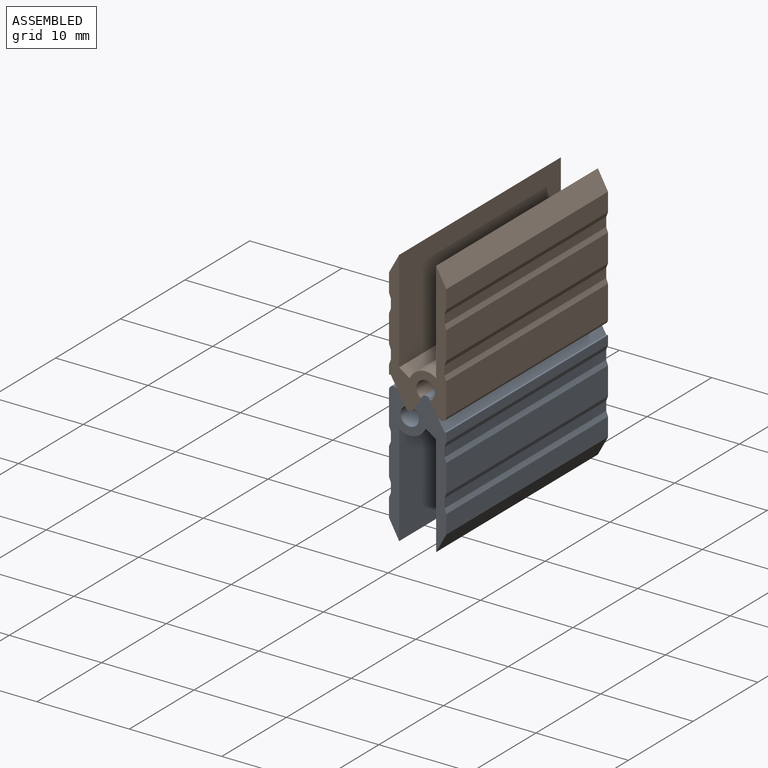
[diagram: assembled view]
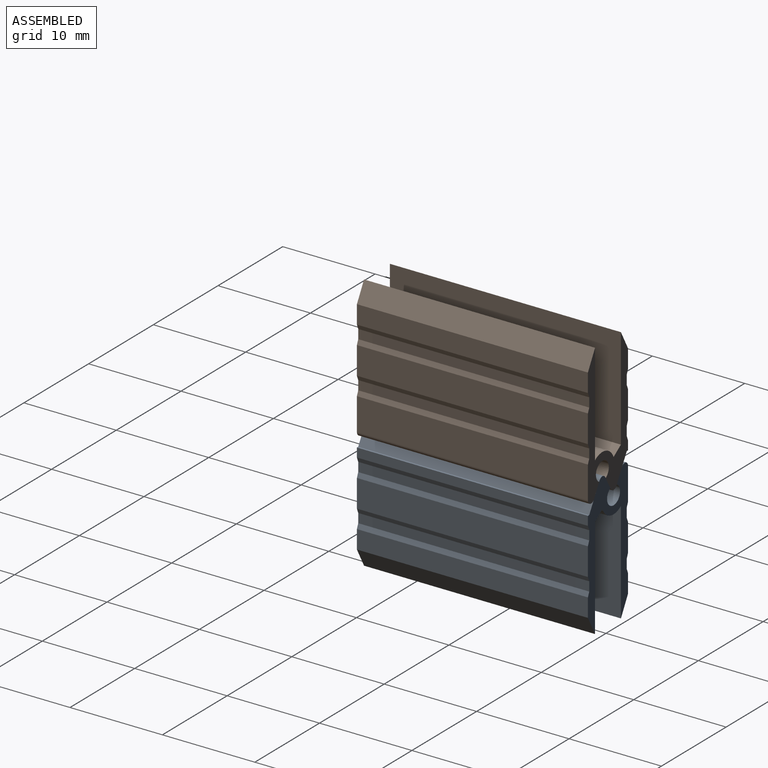
[diagram: assembled view, second angle]
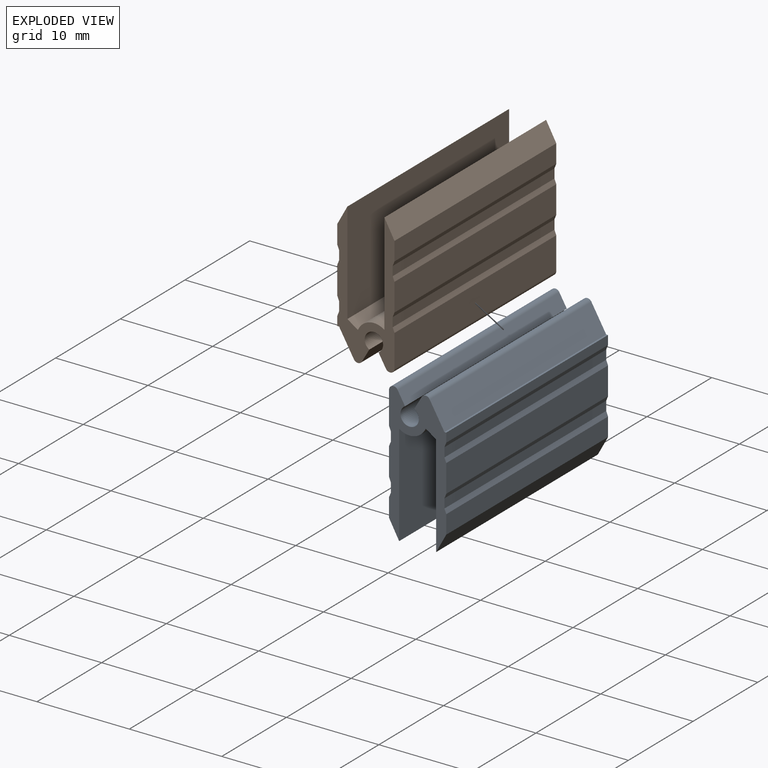
[diagram: exploded view]
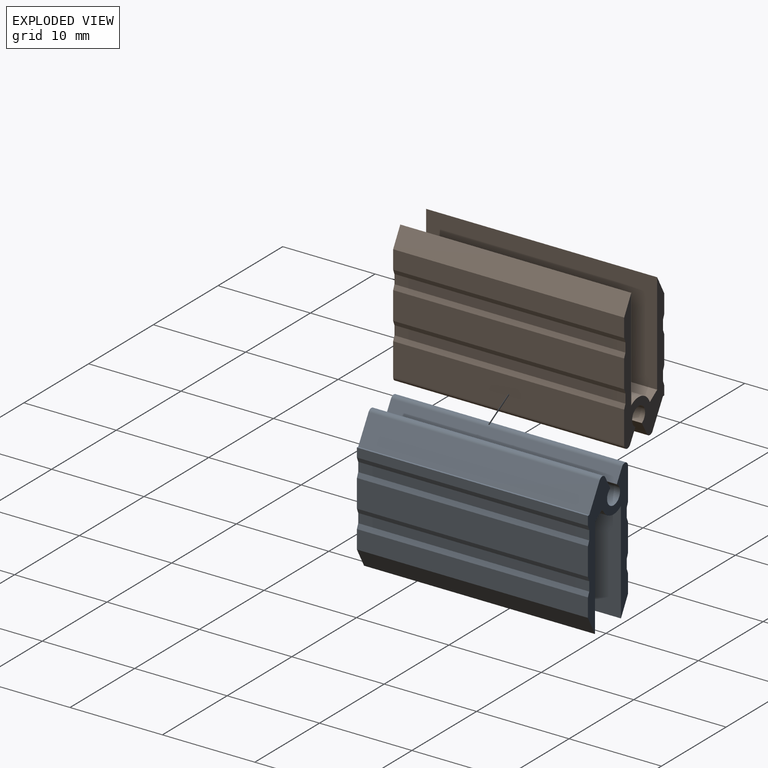
[diagram: exploded view, second angle]
ASSEMBLY  parts=2 mates=2
PART A: 33 faces, bbox 6.2x25x15 mm
  f0: plane 25x2mm, normal (1,0,0), area 50mm2, adj f1,f30,f31,f32
  f1: plane 25x0.5mm, normal (0.93,0,0.37), area 13.5mm2, adj f0,f2,f31,f32
  f2: plane 25x1mm, normal (1,0,0), area 25mm2, adj f1,f3,f31,f32
  f3: plane 25x0.5mm, normal (0.93,0,-0.37), area 13.5mm2, adj f2,f4,f31,f32
  f4: plane 25x3mm, normal (1,0,0), area 75mm2, adj f3,f5,f31,f32
  f5: plane 25x0.5mm, normal (0.93,0,0.37), area 13.5mm2, adj f4,f6,f31,f32
  f6: plane 25x1mm, normal (1,0,0), area 25mm2, adj f5,f7,f31,f32
  f7: plane 25x0.5mm, normal (0.93,0,-0.37), area 13.5mm2, adj f6,f8,f31,f32
  f8: plane 25x0.98mm, normal (1,0,0), area 24.5mm2, adj f7,f9,f31,f32
  f9: plane 25x0.2mm, normal (0,0,1), area 5mm2, adj f8,f10,f31,f32
  f10: plane 25x2.77mm, normal (0.87,0,0.5), area 80mm2, adj f9,f11,f31,f32
  f11: cylinder r=0.5mm len=25mm, axis (0,1,0), area 26.2mm2, adj f10,f12,f31,f32
  f12: plane 25x1.39mm, normal (-0.87,0,0.5), area 40mm2, adj f11,f13,f31,f32
  f13: cylinder r=1mm len=25mm, axis (0,1,0), area 130.9mm2, adj f12,f14,f31,f32
  f14: plane 25x1.39mm, normal (0.87,0,0.5), area 40mm2, adj f13,f15,f31,f32
  f15: cylinder r=0.5mm len=25mm, axis (0,1,0), area 32.7mm2, adj f14,f16,f31,f32
  f16: plane 25x3.5mm, normal (-1,0,0), area 87.5mm2, adj f15,f17,f31,f32
  f17: plane 25x0.5mm, normal (-0.93,0,-0.37), area 13.5mm2, adj f16,f18,f31,f32
  f18: plane 25x1mm, normal (-1,0,0), area 25mm2, adj f17,f19,f31,f32
  f19: plane 25x0.5mm, normal (-0.93,0,0.37), area 13.5mm2, adj f18,f20,f31,f32
  f20: plane 25x3mm, normal (-1,0,0), area 75mm2, adj f19,f21,f31,f32
  f21: plane 25x0.5mm, normal (-0.93,0,-0.37), area 13.5mm2, adj f20,f22,f31,f32
  f22: plane 25x1mm, normal (-1,0,0), area 25mm2, adj f21,f23,f31,f32
  f23: plane 25x0.5mm, normal (-0.93,0,0.37), area 13.5mm2, adj f22,f24,f31,f32
  f24: plane 25x2mm, normal (-1,0,0), area 50mm2, adj f23,f25,f31,f32
  f25: plane 25x2mm, normal (-0.88,0,-0.48), area 57.1mm2, adj f24,f26,f31,f32
  f26: plane 25x11mm, normal (1,0,0), area 275mm2, adj f25,f27,f31,f32
  f27: cylinder r=1.88mm len=25mm, axis (0,1,0), area 85.6mm2, adj f26,f28,f31,f32
  f28: plane 25x1.13mm, normal (-0.56,0,-0.83), area 34.3mm2, adj f27,f29,f31,f32
  f29: plane 25x11mm, normal (-1,0,0), area 275mm2, adj f28,f30,f31,f32
  f30: plane 25x2mm, normal (0.88,0,-0.48), area 57.1mm2, adj f0,f29,f31,f32
  f31: plane 15x6.2mm, normal (0,-1,0), area 36mm2, adj f0,f1,f2,f3,f4,f5,f6,f7
  f32: plane 15x6.2mm, normal (0,1,0), area 36mm2, adj f0,f1,f2,f3,f4,f5,f6,f7
PART B: same geometry as A
PLACE A t=(-0.31,0,-0.95)mm
PLACE B rot(axis=(0,1,0),180deg) t=(-0.31,0,12.04)mm
MATE planar A.f12 <-> B.f12  axis (-0.87,0,0.5) through (-0.28,-12.5,5.6)mm
MATE planar A.f10 <-> B.f14  axis (0.87,0,0.5) through (1.79,-12.5,4.91)mm
